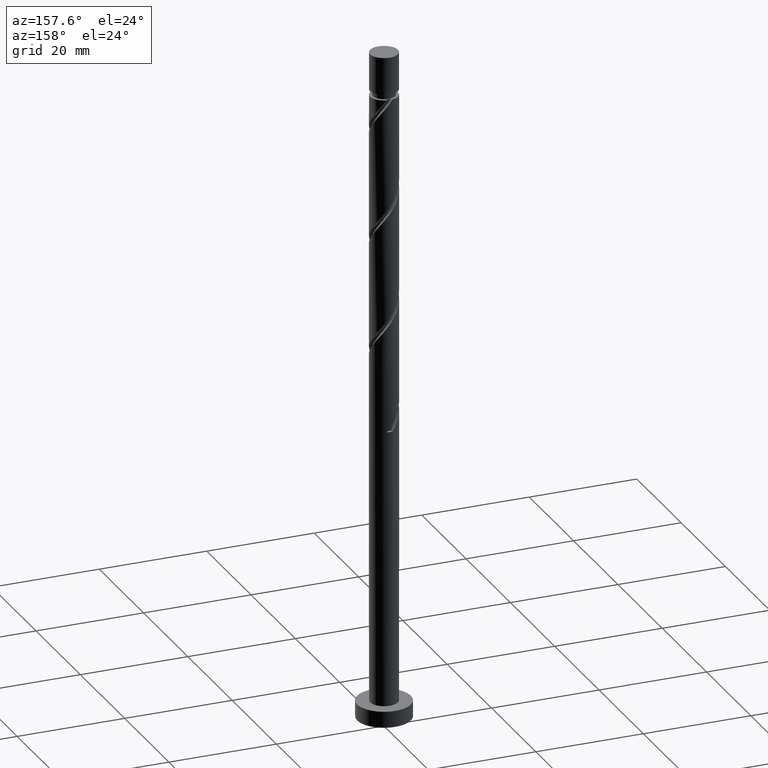
[diagram: clean part render]
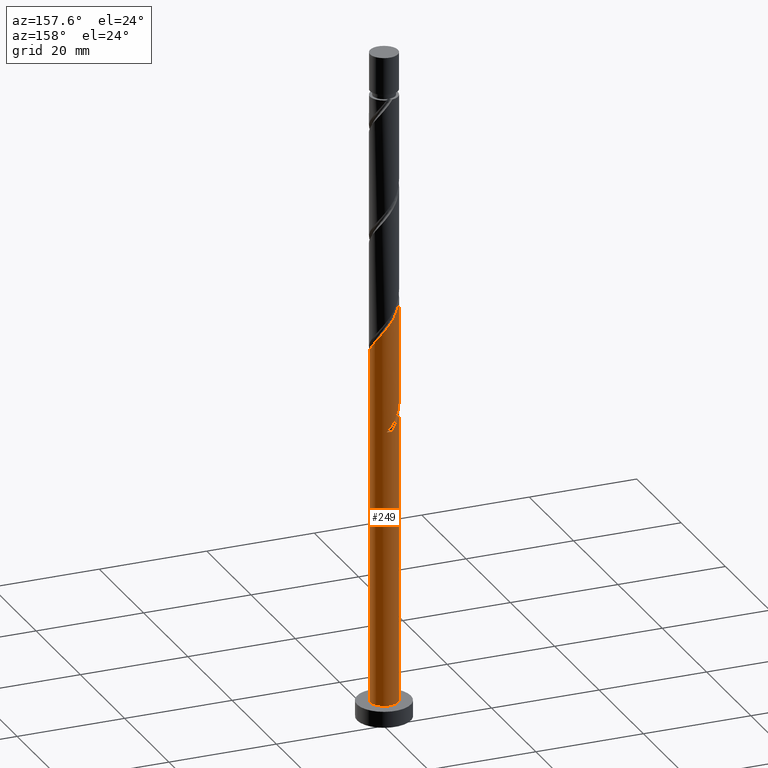
[diagram: same view with one face highlighted and labeled with its STEP entity id]
A machine part, auxiliary view. The second image highlights one B-rep face of the part: STEP entity #249.
In plain terms, the highlighted cylindrical surface (edge-blend (fillet) strip) has radius 2.6 mm, axis along (-0, -0, -1).
Its self-contained STEP definition (entity closure, byte-faithful):
#40 = CARTESIAN_POINT ( 'NONE',  ( 2.600000000000004086, 2.173999903564830327E-15, 69.48773177756913810 ) ) ;
#48 = DIRECTION ( 'NONE',  ( -0.000000000000000000, -0.000000000000000000, -1.000000000000000000 ) ) ;
#49 = CIRCLE ( 'NONE', #1305, 2.600000000000000089 ) ;
#55 = CARTESIAN_POINT ( 'NONE',  ( -2.600000000000004086, 0.1481317173607259174, 58.88155402169518027 ) ) ;
#58 = DIRECTION ( 'NONE',  ( -0.000000000000000000, -0.000000000000000000, -1.000000000000000000 ) ) ;
#78 = CARTESIAN_POINT ( 'NONE',  ( 1.453753770477755003, 2.194579422111510247, 72.75670088570606708 ) ) ;
#79 = EDGE_LOOP ( 'NONE', ( #493, #81, #1040, #1545, #1137, #1161, #1007, #779 ) ) ;
#81 = ORIENTED_EDGE ( 'NONE', *, *, #176, .T. ) ;
#85 = LINE ( 'NONE', #1428, #371 ) ;
#156 = CARTESIAN_POINT ( 'NONE',  ( -0.5173934672954423331, 2.548000000000004039, 54.52753421903938857 ) ) ;
#171 = DIRECTION ( 'NONE',  ( 0.000000000000000000, 0.000000000000000000, 1.000000000000000000 ) ) ;
#173 = CARTESIAN_POINT ( 'NONE',  ( -2.194579422111511580, 1.453753770477754337, 57.13170088570607419 ) ) ;
#176 = EDGE_CURVE ( 'NONE', #191, #404, #1114, .T. ) ;
#191 = VERTEX_POINT ( 'NONE', #40 ) ;
#192 = DIRECTION ( 'NONE',  ( 1.000000000000000000, 0.000000000000000000, 0.000000000000000000 ) ) ;
#205 = CARTESIAN_POINT ( 'NONE',  ( -1.637934439212121340, 2.060764333439525142, 76.92336755237272428 ) ) ;
#206 = VERTEX_POINT ( 'NONE', #1028 ) ;
#212 = CARTESIAN_POINT ( 'NONE',  ( -2.600000000000000089, 0.000000000000000000, 3.000000000000000000 ) ) ;
#249 = ADVANCED_FACE ( 'NONE', ( #414 ), #1142, .T. ) ;
#268 = DIRECTION ( 'NONE',  ( -5.925938290422262115E-30, -2.001604010742470453E-14, -1.000000000000000000 ) ) ;
#272 = CARTESIAN_POINT ( 'NONE',  ( -1.637934439212121340, 2.060764333439525142, 56.09003421903939568 ) ) ;
#285 = CARTESIAN_POINT ( 'NONE',  ( 0.000000000000000000, 0.000000000000000000, 3.000000000000000000 ) ) ;
#289 = CARTESIAN_POINT ( 'NONE',  ( -1.757259051958636853, 1.916256930661813573, 57.65253421903939568 ) ) ;
#308 = EDGE_CURVE ( 'NONE', #1079, #357, #85, .T. ) ;
#321 = CARTESIAN_POINT ( 'NONE',  ( -2.600000000000000533, 3.268496406738868756E-15, 60.40066999384299606 ) ) ;
#328 = CARTESIAN_POINT ( 'NONE',  ( -1.916256930661816238, 1.757259051958639962, 77.44420088570606708 ) ) ;
#336 =( BOUNDED_CURVE ( )  B_SPLINE_CURVE ( 2, ( #653, #860, #532, #754, #397, #867, #289, #763, #1250, #1243, #1364, #1011, #1504 ),
 .UNSPECIFIED., .F., .T. ) 
 B_SPLINE_CURVE_WITH_KNOTS ( ( 3, 2, 2, 2, 2, 2, 3 ),
 ( 0.9295322023138551382, 0.9375000000000000000, 0.9499999999999999556, 0.9625000000000000222, 0.9749999999999999778, 0.9875000000000000444, 1.000000000000000000 ),
 .UNSPECIFIED. ) 
 CURVE ( )  GEOMETRIC_REPRESENTATION_ITEM ( )  RATIONAL_B_SPLINE_CURVE ( ( 0.9039174447099340703, 0.9019565955404633684, 0.9090909090909118362, 0.8978984914501279002, 0.9090909090909118362, 0.8978984914501279002, 0.9090909090909118362, 0.8978984914501279002, 0.9090909090909118362, 0.8978984914501279002, 0.9090909090909118362, 0.8978984914501279002, 0.9090909090909118362 ) ) 
 REPRESENTATION_ITEM ( '' )  );
#339 = CARTESIAN_POINT ( 'NONE',  ( -2.600000000000004086, 0.1481317173607226978, 79.71488735502850886 ) ) ;
#341 = EDGE_CURVE ( 'NONE', #191, #1079, #1433, .T. ) ;
#357 = VERTEX_POINT ( 'NONE', #321 ) ;
#371 = VECTOR ( 'NONE', #693, 1000.000000000000000 ) ;
#397 = CARTESIAN_POINT ( 'NONE',  ( -2.263408629347180678, 1.279445730227240174, 58.69420088570605287 ) ) ;
#404 = VERTEX_POINT ( 'NONE', #1066 ) ;
#407 = CARTESIAN_POINT ( 'NONE',  ( -1.916256930661816238, 1.757259051958639962, 56.61086755237273138 ) ) ;
#414 = FACE_OUTER_BOUND ( 'NONE', #79, .T. ) ;
#446 = CARTESIAN_POINT ( 'NONE',  ( 2.263408629347185119, 1.279445730227241729, 71.19420088570605287 ) ) ;
#462 = CARTESIAN_POINT ( 'NONE',  ( -0.9209570212423621172, 2.466052925254843764, 75.88170088570608129 ) ) ;
#493 = ORIENTED_EDGE ( 'NONE', *, *, #341, .F. ) ;
#514 = CARTESIAN_POINT ( 'NONE',  ( -2.365491551376098567, 1.079096715020631869, 57.65253421903938857 ) ) ;
#532 = CARTESIAN_POINT ( 'NONE',  ( -2.548000000000000043, 0.5173934672954427771, 59.73586755237273138 ) ) ;
#562 = CARTESIAN_POINT ( 'NONE',  ( 0.2953048731074934263, 2.583175377692926045, 74.31920088570606708 ) ) ;
#576 = CARTESIAN_POINT ( 'NONE',  ( 2.600000000000004086, 2.173999903564830327E-15, 69.48773177756913810 ) ) ;
#583 = CARTESIAN_POINT ( 'NONE',  ( -2.194579422111511580, 1.453753770477754337, 77.96503421903940989 ) ) ;
#602 = LINE ( 'NONE', #1565, #1309 ) ;
#620 = EDGE_CURVE ( 'NONE', #206, #1531, #1538, .T. ) ;
#632 = CARTESIAN_POINT ( 'NONE',  ( -2.583175377692926045, 0.2953048731074928157, 58.69420088570606708 ) ) ;
#635 = CARTESIAN_POINT ( 'NONE',  ( 2.600000000000000089, 3.184081677783117698E-16, 125.0000000000000000 ) ) ;
#653 = CARTESIAN_POINT ( 'NONE',  ( -2.600000000000000533, 3.268496406738868756E-15, 60.40066999384299606 ) ) ;
#665 = CARTESIAN_POINT ( 'NONE',  ( -2.600000000000004086, -2.578813678711384586E-15, 59.07106511090246670 ) ) ;
#671 = EDGE_CURVE ( 'NONE', #357, #766, #336, .T. ) ;
#675 = CARTESIAN_POINT ( 'NONE',  ( 2.548000000000005372, 0.5173934672954426661, 70.15253421903940989 ) ) ;
#681 = CARTESIAN_POINT ( 'NONE',  ( -2.536403680640687330, 0.7044396595635091796, 79.00670088570603866 ) ) ;
#693 = DIRECTION ( 'NONE',  ( -0.000000000000000000, -0.000000000000000000, -1.000000000000000000 ) ) ;
#699 = CARTESIAN_POINT ( 'NONE',  ( 1.079096715020632313, 2.365491551376098567, 73.27753421903940989 ) ) ;
#737 = DIRECTION ( 'NONE',  ( 0.000000000000000000, 1.000000000000000000, -2.135044278125300869E-14 ) ) ;
#744 = CARTESIAN_POINT ( 'NONE',  ( -2.536403680640687330, 0.7044396595635091796, 58.17336755237272428 ) ) ;
#754 = CARTESIAN_POINT ( 'NONE',  ( -2.466052925254841544, 0.9209570212423614510, 59.21503421903940279 ) ) ;
#763 = CARTESIAN_POINT ( 'NONE',  ( -1.453753770477752338, 2.194579422111507583, 57.13170088570606708 ) ) ;
#766 = VERTEX_POINT ( 'NONE', #1457 ) ;
#771 = CARTESIAN_POINT ( 'NONE',  ( -1.279445730227241729, 2.263408629347184675, 55.56920088570605998 ) ) ;
#779 = ORIENTED_EDGE ( 'NONE', *, *, #308, .F. ) ;
#814 = CARTESIAN_POINT ( 'NONE',  ( -2.600000000000004086, -2.578813678711384586E-15, 79.90439844423579530 ) ) ;
#818 = VECTOR ( 'NONE', #58, 1000.000000000000000 ) ;
#860 = CARTESIAN_POINT ( 'NONE',  ( -2.600000000000000533, 0.2613098319673932690, 60.06636541843514721 ) ) ;
#867 = CARTESIAN_POINT ( 'NONE',  ( -2.060764333439522034, 1.637934439212118898, 58.17336755237275270 ) ) ;
#886 = VERTEX_POINT ( 'NONE', #212 ) ;
#919 = CARTESIAN_POINT ( 'NONE',  ( -0.1138299133485232428, 2.629947074745163871, 74.84003421903940989 ) ) ;
#934 = CARTESIAN_POINT ( 'NONE',  ( -2.365491551376098567, 1.079096715020631869, 78.48586755237272428 ) ) ;
#947 = CARTESIAN_POINT ( 'NONE',  ( -2.600000000000004086, -2.578813678711384586E-15, 79.90439844423579530 ) ) ;
#959 = DIRECTION ( 'NONE',  ( -0.000000000000000000, -0.000000000000000000, -1.000000000000000000 ) ) ;
#1007 = ORIENTED_EDGE ( 'NONE', *, *, #671, .F. ) ;
#1011 = CARTESIAN_POINT ( 'NONE',  ( 0.1138299133485242420, 2.629947074745161206, 55.04836755237273138 ) ) ;
#1020 = DIRECTION ( 'NONE',  ( -1.000000000000000000, 0.000000000000000000, 0.000000000000000000 ) ) ;
#1028 = CARTESIAN_POINT ( 'NONE',  ( -0.5173934672954423331, 2.548000000000004039, 54.52753421903938857 ) ) ;
#1034 = CARTESIAN_POINT ( 'NONE',  ( -2.583175377692926045, 0.2953048731074928157, 79.52753421903939568 ) ) ;
#1039 = CARTESIAN_POINT ( 'NONE',  ( 0.7044396595635097347, 2.536403680640687330, 73.79836755237273849 ) ) ;
#1040 = ORIENTED_EDGE ( 'NONE', *, *, #1569, .T. ) ;
#1058 = CARTESIAN_POINT ( 'NONE',  ( -0.5173934672954424441, 2.548000000000005372, 75.36086755237271007 ) ) ;
#1066 = CARTESIAN_POINT ( 'NONE',  ( 2.600000000000000089, 3.184081677783117698E-16, 3.000000000000000000 ) ) ;
#1079 = VERTEX_POINT ( 'NONE', #947 ) ;
#1114 = LINE ( 'NONE', #635, #818 ) ;
#1121 = CARTESIAN_POINT ( 'NONE',  ( 0.000000000000000000, 0.000000000000000000, 125.0000000000000000 ) ) ;
#1128 = CARTESIAN_POINT ( 'NONE',  ( -2.600000000000004086, -2.578813678711384586E-15, 59.07106511090246670 ) ) ;
#1137 = ORIENTED_EDGE ( 'NONE', *, *, #620, .F. ) ;
#1142 = CYLINDRICAL_SURFACE ( 'NONE', #1334, 2.600000000000000089 ) ;
#1150 = CARTESIAN_POINT ( 'NONE',  ( 1.757259051958640184, 1.916256930661815572, 72.23586755237269585 ) ) ;
#1160 = EDGE_CURVE ( 'NONE', #1531, #886, #602, .T. ) ;
#1161 = ORIENTED_EDGE ( 'NONE', *, *, #1400, .T. ) ;
#1195 = AXIS2_PLACEMENT_3D ( 'NONE', #1353, #268, #737 ) ;
#1243 = CARTESIAN_POINT ( 'NONE',  ( -0.7044396595635079583, 2.536403680640683778, 56.09003421903940279 ) ) ;
#1250 = CARTESIAN_POINT ( 'NONE',  ( -1.079096715020630093, 2.365491551376095458, 56.61086755237273138 ) ) ;
#1305 = AXIS2_PLACEMENT_3D ( 'NONE', #285, #171, #192 ) ;
#1307 = CARTESIAN_POINT ( 'NONE',  ( 2.060764333439525586, 1.637934439212120674, 71.71503421903939568 ) ) ;
#1309 = VECTOR ( 'NONE', #959, 1000.000000000000000 ) ;
#1334 = AXIS2_PLACEMENT_3D ( 'NONE', #1121, #48, #1020 ) ;
#1353 = CARTESIAN_POINT ( 'NONE',  ( 0.000000000000000000, 0.000000000000000000, 54.52753421903943831 ) ) ;
#1364 = CARTESIAN_POINT ( 'NONE',  ( -0.2953048731074917610, 2.583175377692921604, 55.56920088570605998 ) ) ;
#1400 = EDGE_CURVE ( 'NONE', #206, #766, #1489, .T. ) ;
#1411 = CARTESIAN_POINT ( 'NONE',  ( 2.466052925254843764, 0.9209570212423618951, 70.67336755237272428 ) ) ;
#1421 = CARTESIAN_POINT ( 'NONE',  ( 2.600000000000003197, 0.2613098319673980985, 69.82203635297697986 ) ) ;
#1428 = CARTESIAN_POINT ( 'NONE',  ( -2.600000000000000089, 0.000000000000000000, 125.0000000000000000 ) ) ;
#1433 =( BOUNDED_CURVE ( )  B_SPLINE_CURVE ( 2, ( #576, #1421, #675, #1411, #446, #1307, #1150, #78, #699, #1039, #562, #919, #1058, #462, #1552, #205, #328, #583, #934, #681, #1034, #339, #814 ),
 .UNSPECIFIED., .F., .T. ) 
 B_SPLINE_CURVE_WITH_KNOTS ( ( 3, 2, 2, 2, 2, 2, 2, 2, 2, 2, 2, 3 ),
 ( 0.1795322023138553047, 0.1875000000000000000, 0.1999999999999999556, 0.2125000000000000222, 0.2249999999999999778, 0.2375000000000000444, 0.2500000000000000000, 0.2624999999999999556, 0.2750000000000000222, 0.2874999999999999778, 0.3000000000000000444, 0.3045322023138553047 ),
 .UNSPECIFIED. ) 
 CURVE ( )  GEOMETRIC_REPRESENTATION_ITEM ( )  RATIONAL_B_SPLINE_CURVE ( ( 0.9039174447099398435, 0.9019565955404693636, 0.9090909090909177204, 0.8978984914501337844, 0.9090909090909177204, 0.8978984914501337844, 0.9090909090909177204, 0.8978984914501337844, 0.9090909090909177204, 0.8978984914501337844, 0.9090909090909177204, 0.8978984914501337844, 0.9090909090909177204, 0.8978984914501337844, 0.9090909090909177204, 0.8978984914501337844, 0.9090909090909177204, 0.8978984914501337844, 0.9090909090909177204, 0.8978984914501337844, 0.9090909090909177204, 0.9050328050005820302, 0.9039174447099398435 ) ) 
 REPRESENTATION_ITEM ( '' )  );
#1457 = CARTESIAN_POINT ( 'NONE',  ( 0.5173934672954432212, 2.548000000000000043, 54.52753421903938857 ) ) ;
#1489 = CIRCLE ( 'NONE', #1195, 2.600000000000000089 ) ;
#1498 = CARTESIAN_POINT ( 'NONE',  ( -0.9209570212423621172, 2.466052925254843764, 55.04836755237272428 ) ) ;
#1504 = CARTESIAN_POINT ( 'NONE',  ( 0.5173934672954432212, 2.548000000000000043, 54.52753421903938857 ) ) ;
#1531 = VERTEX_POINT ( 'NONE', #665 ) ;
#1538 =( BOUNDED_CURVE ( )  B_SPLINE_CURVE ( 2, ( #156, #1498, #771, #272, #407, #173, #514, #744, #632, #55, #1128 ),
 .UNSPECIFIED., .F., .T. ) 
 B_SPLINE_CURVE_WITH_KNOTS ( ( 3, 2, 2, 2, 2, 3 ),
 ( 0.000000000000000000, 0.01249999999999995386, 0.02500000000000002220, 0.03749999999999997780, 0.05000000000000004441, 0.05453220231385520755 ),
 .UNSPECIFIED. ) 
 CURVE ( )  GEOMETRIC_REPRESENTATION_ITEM ( )  RATIONAL_B_SPLINE_CURVE ( ( 0.9090909090909177204, 0.8978984914501337844, 0.9090909090909177204, 0.8978984914501337844, 0.9090909090909177204, 0.8978984914501337844, 0.9090909090909177204, 0.8978984914501337844, 0.9090909090909177204, 0.9050328050005820302, 0.9039174447099398435 ) ) 
 REPRESENTATION_ITEM ( '' )  );
#1545 = ORIENTED_EDGE ( 'NONE', *, *, #1160, .F. ) ;
#1552 = CARTESIAN_POINT ( 'NONE',  ( -1.279445730227241729, 2.263408629347184675, 76.40253421903940989 ) ) ;
#1565 = CARTESIAN_POINT ( 'NONE',  ( -2.600000000000000089, 0.000000000000000000, 125.0000000000000000 ) ) ;
#1569 = EDGE_CURVE ( 'NONE', #404, #886, #49, .T. ) ;